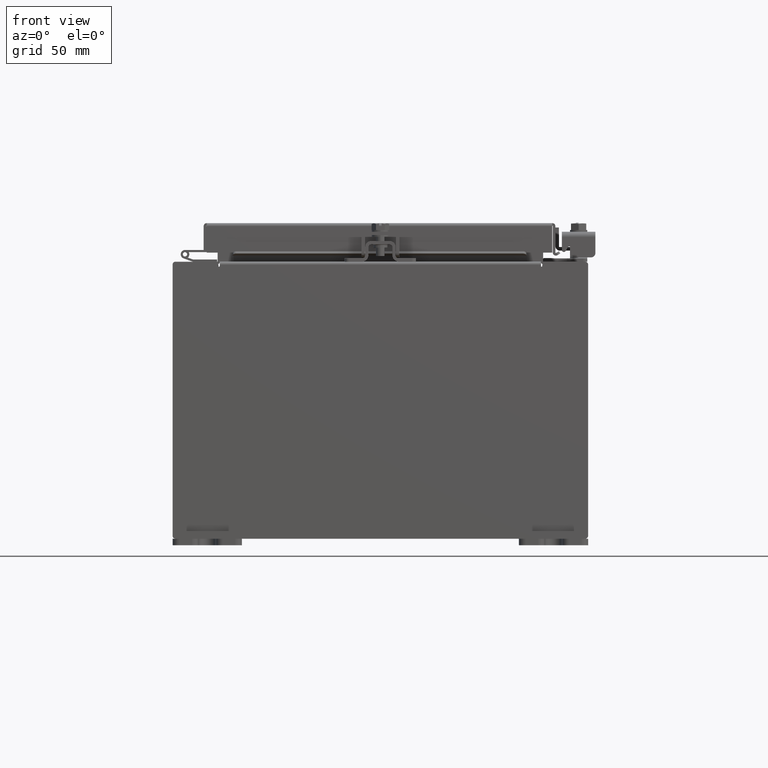
[diagram: clean part render]
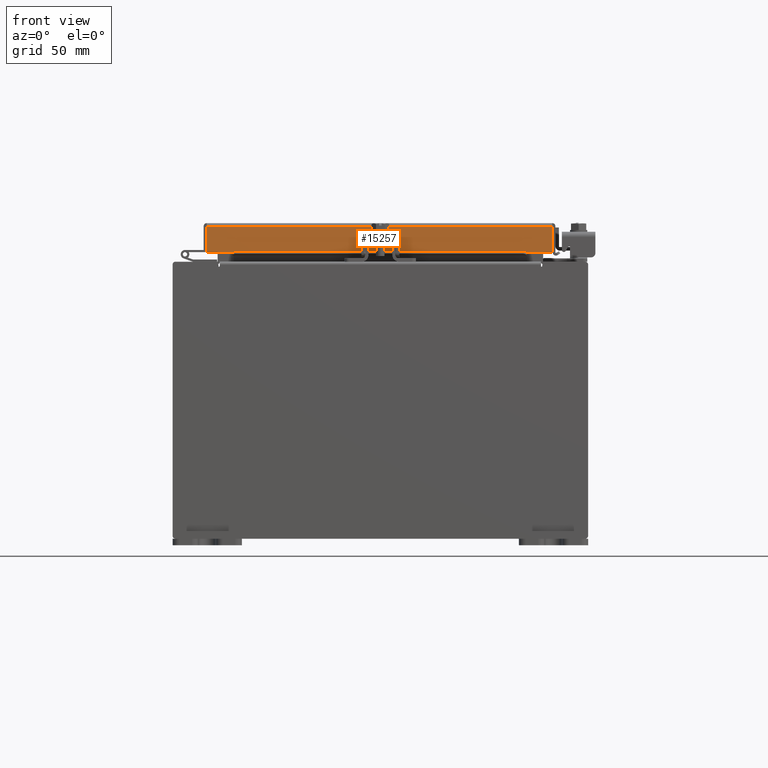
[diagram: same view with one face highlighted and labeled with its STEP entity id]
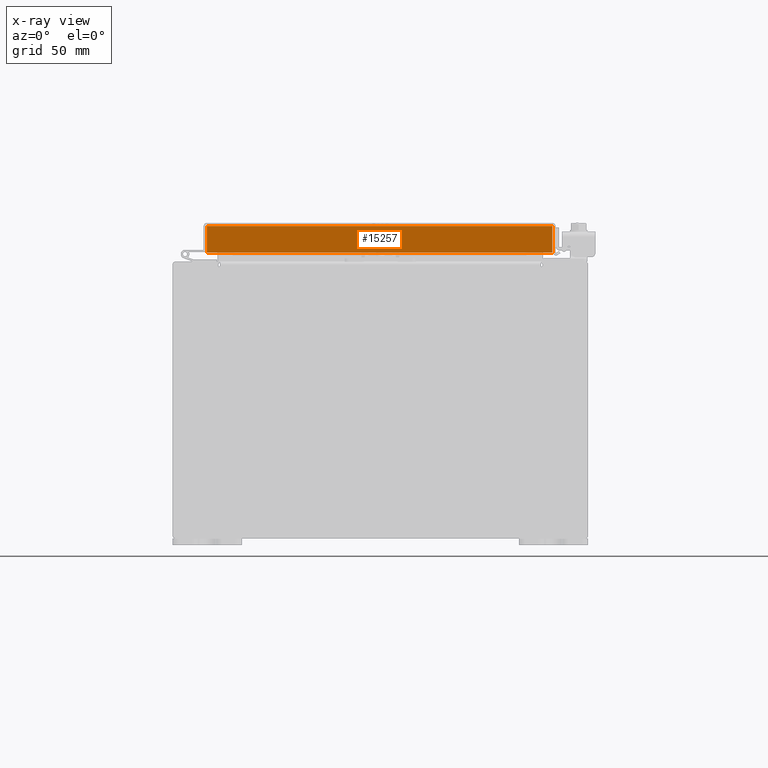
[diagram: x-ray of the same camera — body ghosted, the highlighted face saturated]
A machine part, front view. The second image highlights one B-rep face of the part: STEP entity #15257.
The next image is the same camera in x-ray: the body ghosted, the highlighted face saturated — about 0% of this face is hidden behind the body in this view.
In plain terms, the highlighted planar face has unit normal (-0, 1, -0).
Its self-contained STEP definition (entity closure, byte-faithful):
#138 = DIRECTION ( 'NONE',  ( -1.000000000000000000, -4.379057701015054300E-047, 1.210448599004449200E-016 ) ) ;
#376 = EDGE_CURVE ( 'NONE', #9106, #22456, #12325, .T. ) ;
#590 = EDGE_CURVE ( 'NONE', #11353, #1355, #22733, .T. ) ;
#684 = CARTESIAN_POINT ( 'NONE',  ( -4.989157864376269700, -5.094000000000001200, 1.420560956705417000E-014 ) ) ;
#1355 = VERTEX_POINT ( 'NONE', #23118 ) ;
#2255 = ORIENTED_EDGE ( 'NONE', *, *, #376, .F. ) ;
#2760 = EDGE_LOOP ( 'NONE', ( #23245, #21415, #15448, #2255, #15578, #12468 ) ) ;
#6016 = DIRECTION ( 'NONE',  ( 1.000000000000000000, 3.412110487939144700E-031, -9.300620212429628900E-046 ) ) ;
#6613 = VECTOR ( 'NONE', #20516, 39.37007874015748100 ) ;
#6939 = VECTOR ( 'NONE', #20218, 39.37007874015748100 ) ;
#7745 = LINE ( 'NONE', #684, #6613 ) ;
#8245 = EDGE_CURVE ( 'NONE', #1355, #9106, #12953, .T. ) ;
#8342 = PLANE ( 'NONE',  #18510 ) ;
#8670 = EDGE_CURVE ( 'NONE', #22456, #19720, #10956, .T. ) ;
#9106 = VERTEX_POINT ( 'NONE', #15059 ) ;
#9357 = CARTESIAN_POINT ( 'NONE',  ( -4.239157864376270600, -5.094000000000002100, -0.8499999999999999800 ) ) ;
#9611 = CARTESIAN_POINT ( 'NONE',  ( 5.077999999999998500, -5.094000000000001200, -0.08770000000000026400 ) ) ;
#9631 = VECTOR ( 'NONE', #6016, 39.37007874015748100 ) ;
#10155 = DIRECTION ( 'NONE',  ( -1.000000000000000000, -4.379057701015054300E-047, 1.210448599004449200E-016 ) ) ;
#10175 = DIRECTION ( 'NONE',  ( 0.0000000000000000000, 2.818880942772360100E-015, 1.000000000000000000 ) ) ;
#10235 = CARTESIAN_POINT ( 'NONE',  ( 5.077999999999998500, -5.094000000000003000, -0.8499999999999999800 ) ) ;
#10757 = DIRECTION ( 'NONE',  ( -0.0000000000000000000, -2.818880942772360100E-015, -1.000000000000000000 ) ) ;
#10796 = VERTEX_POINT ( 'NONE', #17733 ) ;
#10956 = LINE ( 'NONE', #10235, #14642 ) ;
#10964 = CARTESIAN_POINT ( 'NONE',  ( 5.077999999999998500, -5.094000000000003000, -0.8499999999999999800 ) ) ;
#11353 = VERTEX_POINT ( 'NONE', #21085 ) ;
#11376 = LINE ( 'NONE', #9611, #9631 ) ;
#12325 = LINE ( 'NONE', #18492, #6939 ) ;
#12468 = ORIENTED_EDGE ( 'NONE', *, *, #590, .F. ) ;
#12953 = LINE ( 'NONE', #10964, #21981 ) ;
#13961 = FACE_OUTER_BOUND ( 'NONE', #2760, .T. ) ;
#14498 = CARTESIAN_POINT ( 'NONE',  ( -4.989157864376269700, -5.094000000000003000, -0.8499999999999988700 ) ) ;
#14586 = EDGE_CURVE ( 'NONE', #10796, #19720, #7745, .T. ) ;
#14642 = VECTOR ( 'NONE', #10155, 39.37007874015748100 ) ;
#15059 = CARTESIAN_POINT ( 'NONE',  ( 4.239157864376268000, -5.094000000000002100, -0.8499999999999999800 ) ) ;
#15257 = ADVANCED_FACE ( 'NONE', ( #13961 ), #8342, .F. ) ;
#15448 = ORIENTED_EDGE ( 'NONE', *, *, #8670, .F. ) ;
#15578 = ORIENTED_EDGE ( 'NONE', *, *, #8245, .F. ) ;
#16276 = VECTOR ( 'NONE', #10757, 39.37007874015748100 ) ;
#17062 = EDGE_CURVE ( 'NONE', #10796, #11353, #11376, .T. ) ;
#17733 = CARTESIAN_POINT ( 'NONE',  ( -4.989157864376269700, -5.094000000000001200, -0.08770000000000026400 ) ) ;
#18492 = CARTESIAN_POINT ( 'NONE',  ( 4.239157864376268000, -5.094000000000002100, -0.8499999999999999800 ) ) ;
#18510 = AXIS2_PLACEMENT_3D ( 'NONE', #19196, #21003, #10175 ) ;
#19196 = CARTESIAN_POINT ( 'NONE',  ( 0.0000000000000000000, -5.094000000000001200, 1.420560956705417000E-014 ) ) ;
#19720 = VERTEX_POINT ( 'NONE', #14498 ) ;
#19755 = CARTESIAN_POINT ( 'NONE',  ( 4.989157864376268000, -5.094000000000001200, -0.07470000000000015500 ) ) ;
#20218 = DIRECTION ( 'NONE',  ( -1.000000000000000000, 0.0000000000000000000, 0.0000000000000000000 ) ) ;
#20516 = DIRECTION ( 'NONE',  ( 0.0000000000000000000, -2.818880942772360100E-015, -1.000000000000000000 ) ) ;
#21003 = DIRECTION ( 'NONE',  ( -3.412110487939144300E-031, 1.000000000000000000, -2.818880942772360100E-015 ) ) ;
#21085 = CARTESIAN_POINT ( 'NONE',  ( 4.989157864376268000, -5.094000000000001200, -0.08770000000000026400 ) ) ;
#21415 = ORIENTED_EDGE ( 'NONE', *, *, #14586, .T. ) ;
#21981 = VECTOR ( 'NONE', #138, 39.37007874015748100 ) ;
#22456 = VERTEX_POINT ( 'NONE', #9357 ) ;
#22733 = LINE ( 'NONE', #19755, #16276 ) ;
#23118 = CARTESIAN_POINT ( 'NONE',  ( 4.989157864376268000, -5.094000000000003000, -0.8499999999999999800 ) ) ;
#23245 = ORIENTED_EDGE ( 'NONE', *, *, #17062, .F. ) ;